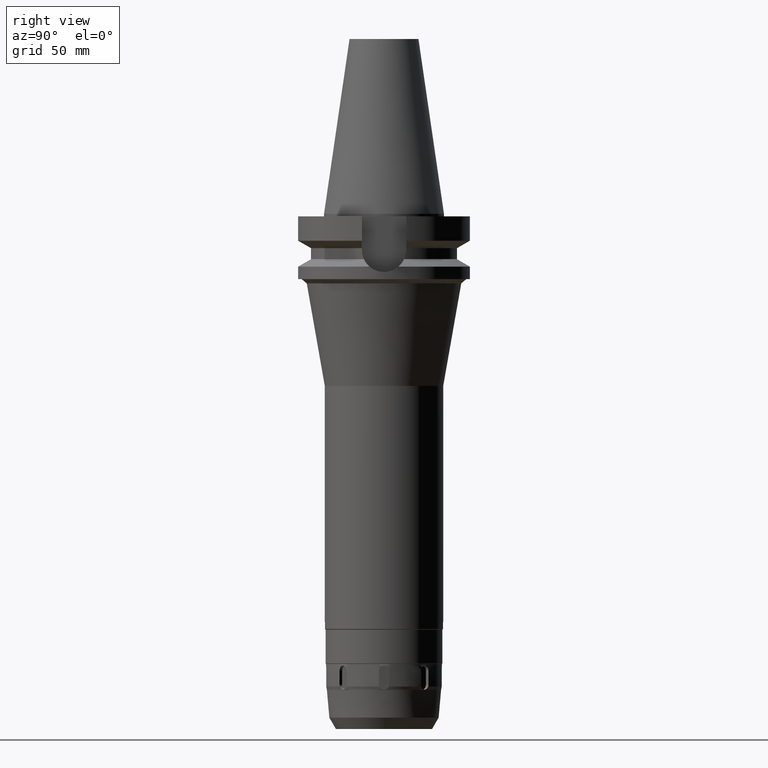
[diagram: clean part render]
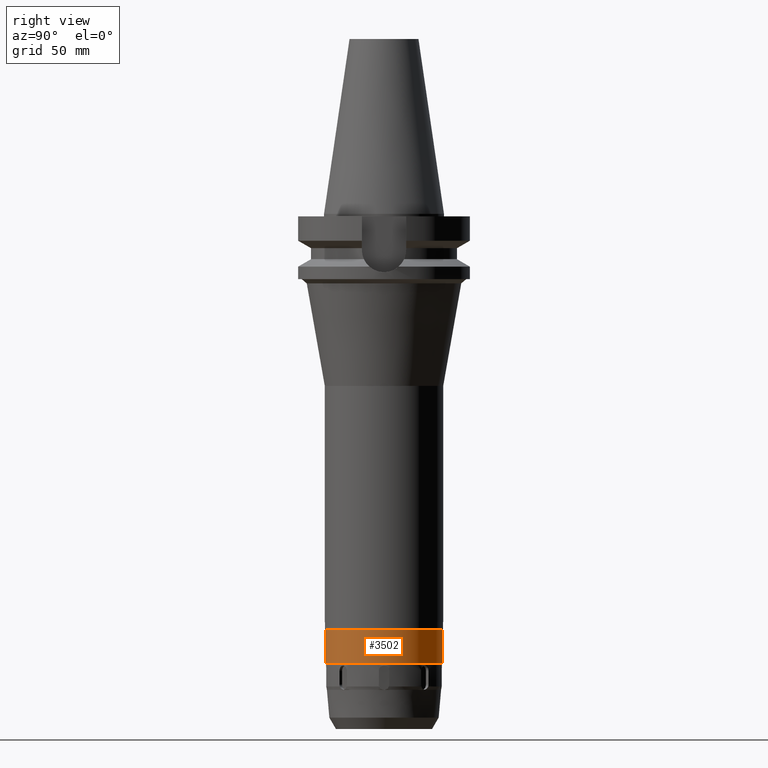
[diagram: same view with one face highlighted and labeled with its STEP entity id]
A machine part, right view. The second image highlights one B-rep face of the part: STEP entity #3502.
In plain terms, the highlighted cylindrical surface (partial cylindrical patch) has radius 34 mm, axis along (0, 0, -1).
Its self-contained STEP definition (entity closure, byte-faithful):
#1169=CARTESIAN_POINT('',(0.E0,-1.983009329519E-14,-2.618E2));
#1170=DIRECTION('',(0.E0,0.E0,1.E0));
#1171=DIRECTION('',(0.E0,-1.E0,0.E0));
#1172=AXIS2_PLACEMENT_3D('',#1169,#1170,#1171);
#1200=DIRECTION('',(0.E0,0.E0,-1.E0));
#1201=VECTOR('',#1200,1.965E1);
#1202=CARTESIAN_POINT('',(0.E0,-3.4E1,-2.4215E2));
#1203=LINE('',#1202,#1201);
#1207=DIRECTION('',(0.E0,0.E0,-1.E0));
#1208=VECTOR('',#1207,1.965E1);
#1209=CARTESIAN_POINT('',(0.E0,3.4E1,-2.4215E2));
#1210=LINE('',#1209,#1208);
#1221=CARTESIAN_POINT('',(0.E0,-1.738692293089E-14,-2.4215E2));
#1222=DIRECTION('',(0.E0,0.E0,-1.E0));
#1223=DIRECTION('',(0.E0,1.E0,0.E0));
#1224=AXIS2_PLACEMENT_3D('',#1221,#1222,#1223);
#2613=CARTESIAN_POINT('',(0.E0,3.4E1,-2.618E2));
#2614=VERTEX_POINT('',#2613);
#2615=CARTESIAN_POINT('',(0.E0,-3.4E1,-2.618E2));
#2616=VERTEX_POINT('',#2615);
#2617=CARTESIAN_POINT('',(0.E0,3.4E1,-2.4215E2));
#2618=VERTEX_POINT('',#2617);
#2619=CARTESIAN_POINT('',(0.E0,-3.4E1,-2.4215E2));
#2620=VERTEX_POINT('',#2619);
#3490=CARTESIAN_POINT('',(0.E0,2.717368782628E-14,1.2189E2));
#3491=DIRECTION('',(0.E0,0.E0,-1.E0));
#3492=DIRECTION('',(0.E0,-1.E0,0.E0));
#3493=AXIS2_PLACEMENT_3D('',#3490,#3491,#3492);
#3494=CYLINDRICAL_SURFACE('',#3493,3.4E1);
#3495=ORIENTED_EDGE('',*,*,#3480,.T.);
#3496=ORIENTED_EDGE('',*,*,#3457,.F.);
#3497=ORIENTED_EDGE('',*,*,#3484,.F.);
#3499=ORIENTED_EDGE('',*,*,#3498,.F.);
#3500=EDGE_LOOP('',(#3495,#3496,#3497,#3499));
#3501=FACE_OUTER_BOUND('',#3500,.F.);
#1173=CIRCLE('',#1172,3.4E1);
#1225=CIRCLE('',#1224,3.4E1);
#3457=EDGE_CURVE('',#2616,#2614,#1173,.T.);
#3480=EDGE_CURVE('',#2618,#2614,#1210,.T.);
#3484=EDGE_CURVE('',#2620,#2616,#1203,.T.);
#3498=EDGE_CURVE('',#2618,#2620,#1225,.T.);
#3502=ADVANCED_FACE('',(#3501),#3494,.T.);